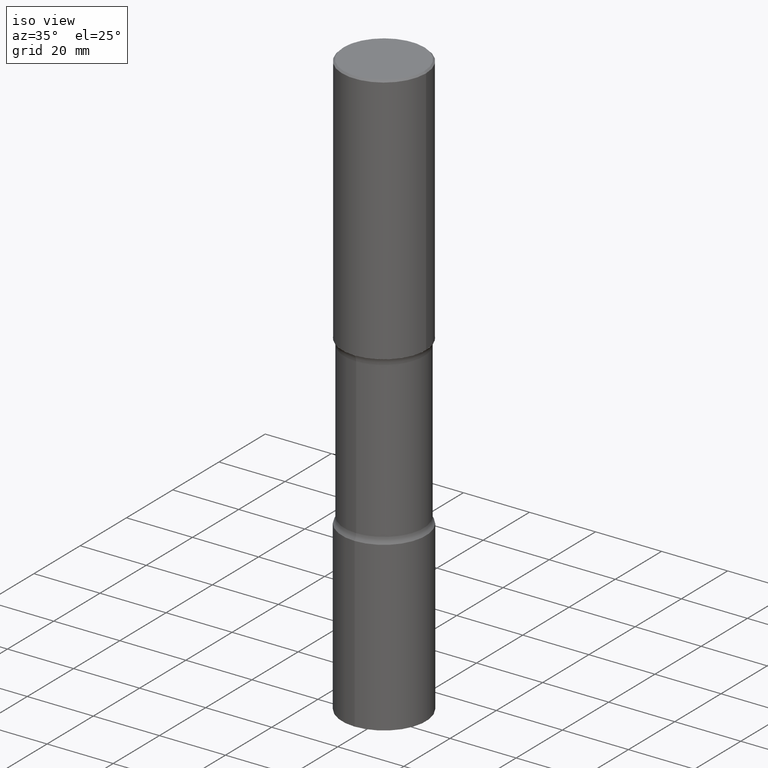
[diagram: clean part render]
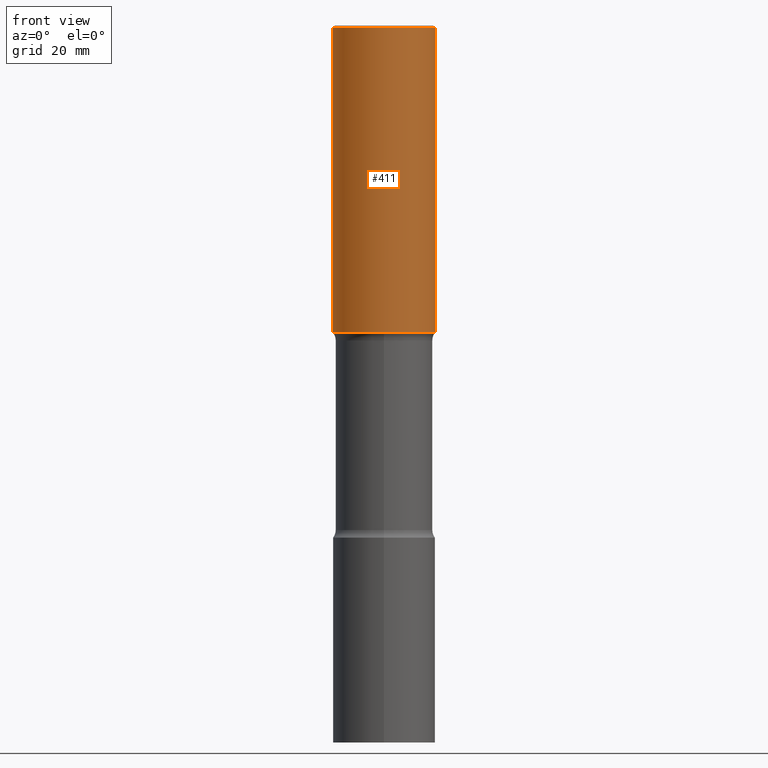
[diagram: tour spotlight — one face highlighted and labeled with its STEP entity id]
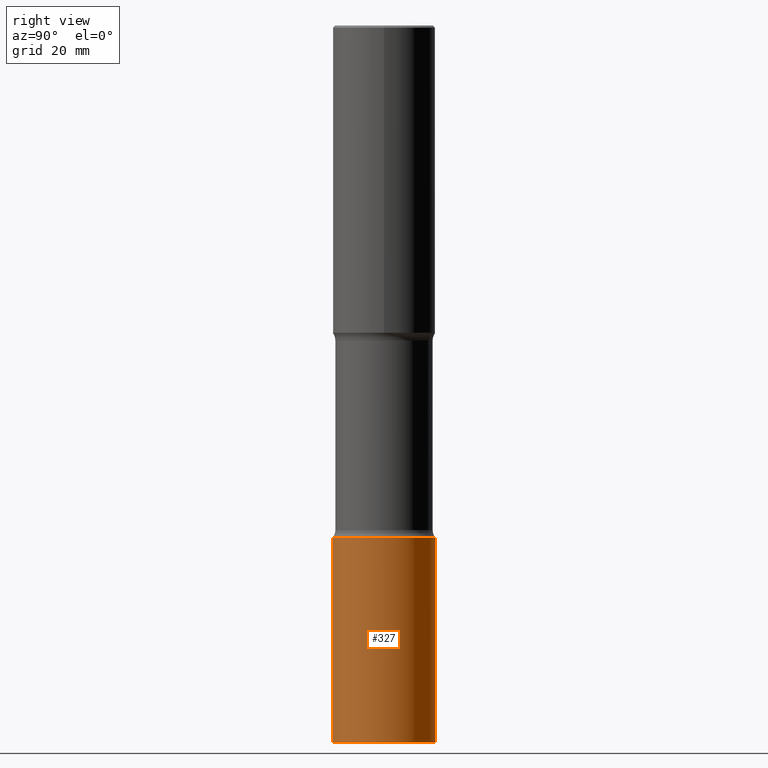
[diagram: tour spotlight — one face highlighted and labeled with its STEP entity id]
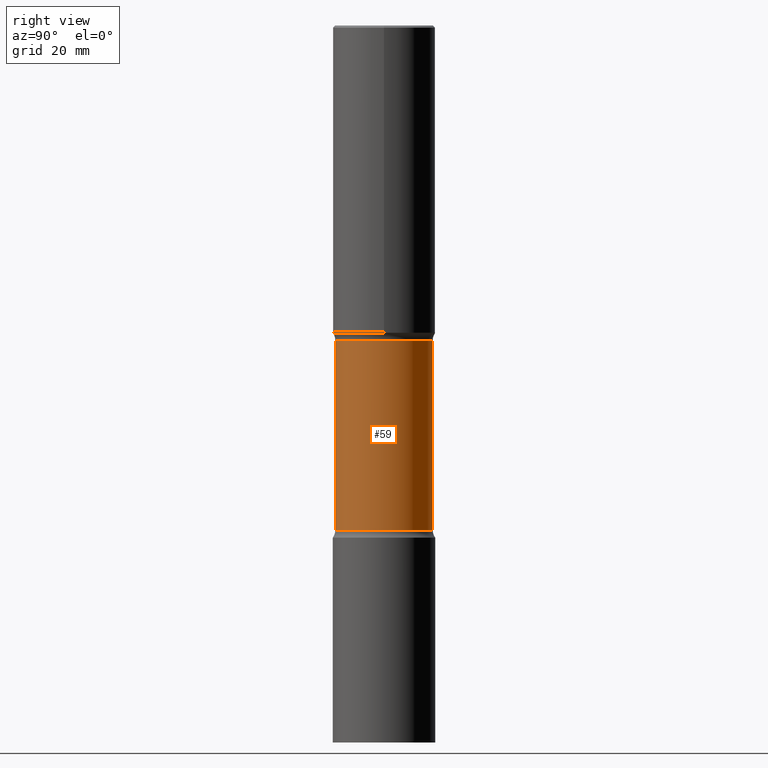
[diagram: tour spotlight — one face highlighted and labeled with its STEP entity id]
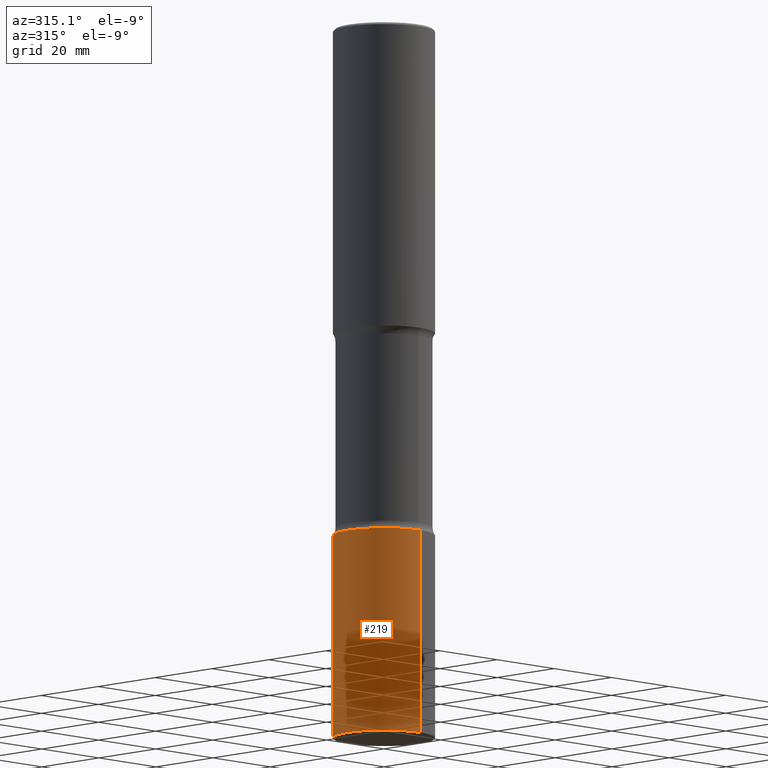
[diagram: tour spotlight — one face highlighted and labeled with its STEP entity id]
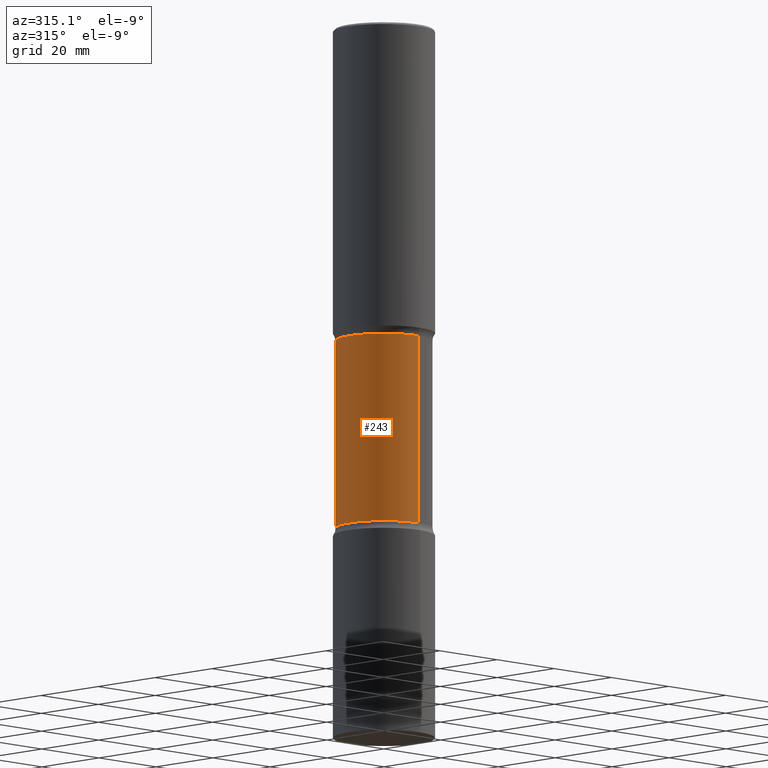
[diagram: tour spotlight — one face highlighted and labeled with its STEP entity id]
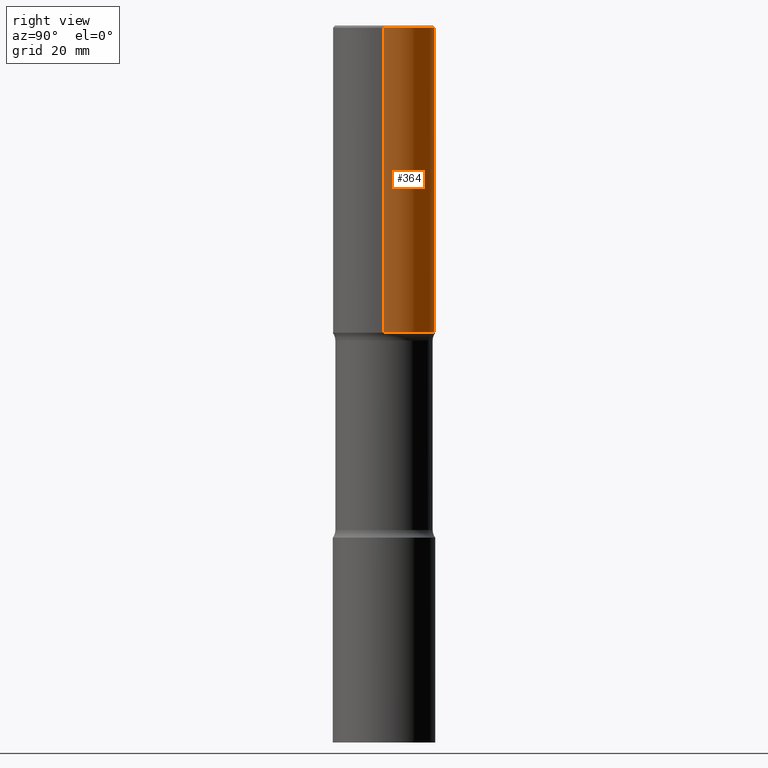
[diagram: tour spotlight — one face highlighted and labeled with its STEP entity id]
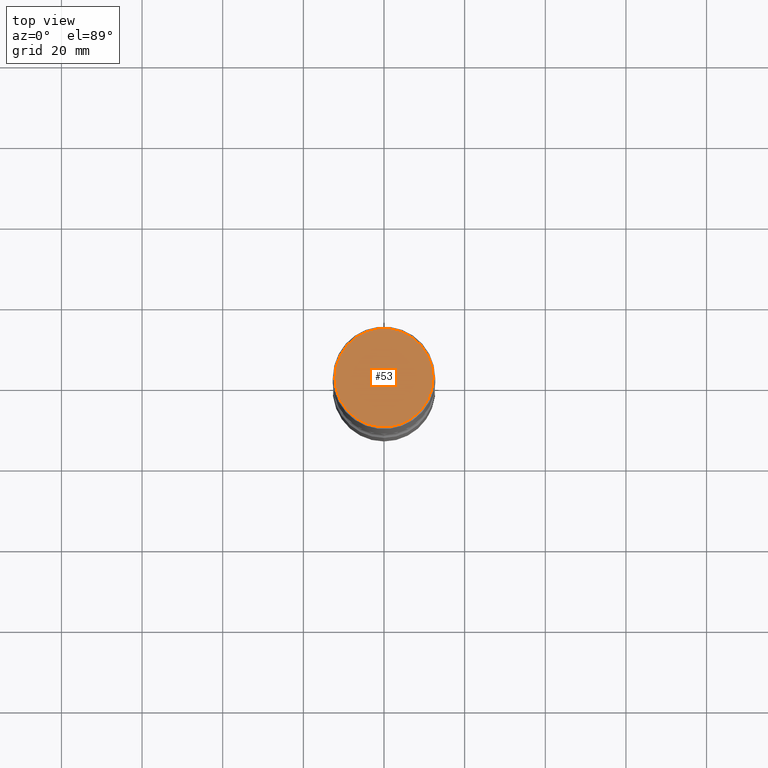
[diagram: tour spotlight — one face highlighted and labeled with its STEP entity id]
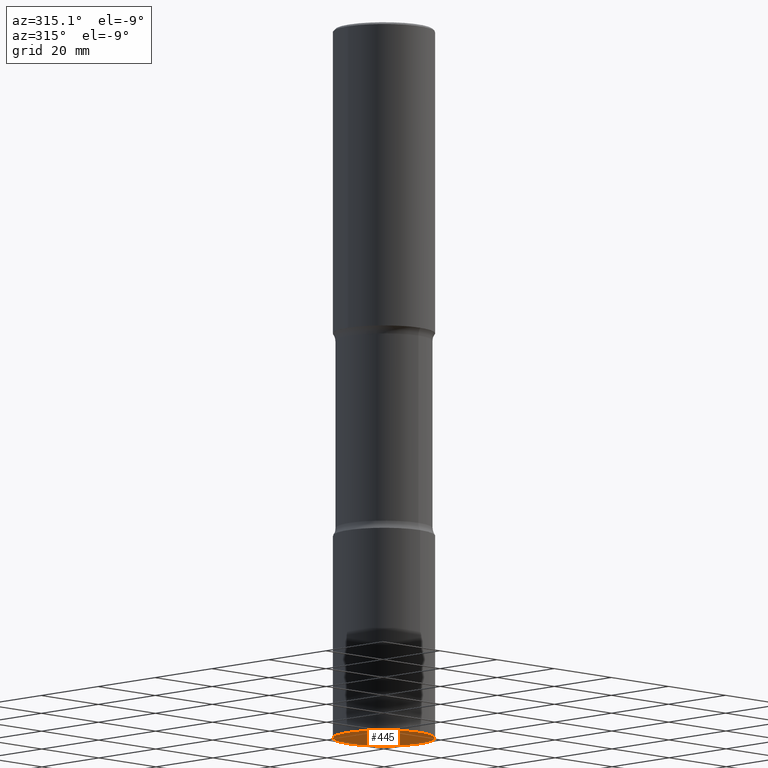
[diagram: tour spotlight — one face highlighted and labeled with its STEP entity id]
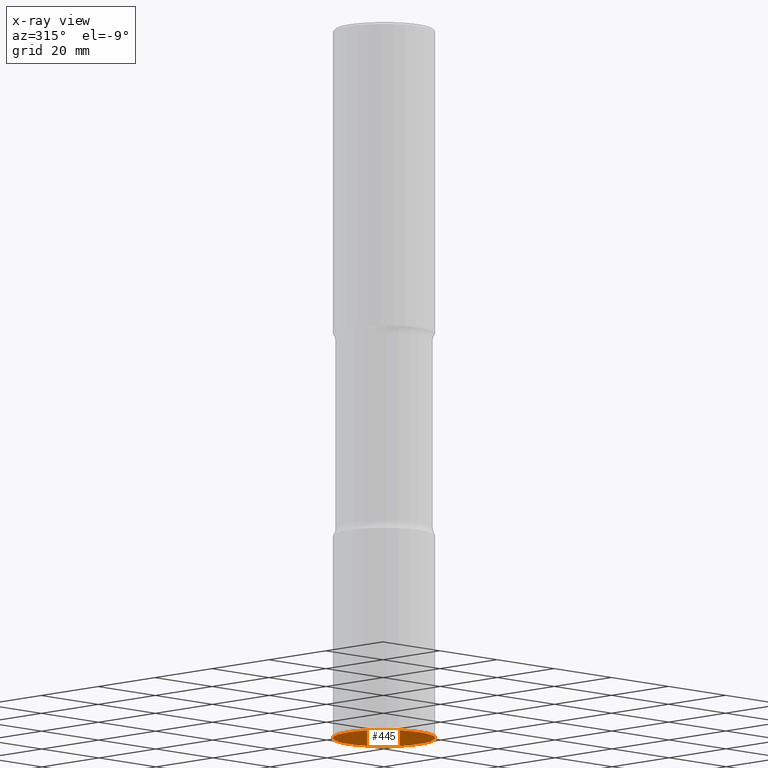
[diagram: x-ray of the same camera — body ghosted, this tour face saturated]
A machine part: a face-by-face anatomy tour. The part has 18 B-rep faces; the first image is the clean iso view, then the 8 largest visible faces are spotlighted one at a time (largest first), each with its STEP entity span.

Face 1 — front view, entity #411. In plain terms, the highlighted cylindrical surface (partial cylindrical patch) has radius 12.7 mm, axis along (-0, 0, 1).
Definition (entity closure, byte-faithful):
#7 = AXIS2_PLACEMENT_3D ( 'NONE', #438, #268, #228 ) ;
#10 = CARTESIAN_POINT ( 'NONE',  ( 0.4999999999999997224, -3.500078625662627502E-15, -0.02000000000000010103 ) ) ;
#20 = EDGE_LOOP ( 'NONE', ( #210, #172, #151, #181 ) ) ;
#110 = CARTESIAN_POINT ( 'NONE',  ( 4.890937612370298557E-31, -6.982962677686327354E-17, -0.02000000000000010103 ) ) ;
#136 = LINE ( 'NONE', #412, #197 ) ;
#140 = CARTESIAN_POINT ( 'NONE',  ( -0.5000000000000000000, -1.719423142852647319E-15, -2.999999999999999556 ) ) ;
#141 = DIRECTION ( 'NONE',  ( -2.445468806185136877E-29, 3.491481338843145188E-15, 1.000000000000000000 ) ) ;
#145 = EDGE_CURVE ( 'NONE', #273, #281, #504, .T. ) ;
#151 = ORIENTED_EDGE ( 'NONE', *, *, #145, .T. ) ;
#165 = EDGE_CURVE ( 'NONE', #451, #281, #277, .T. ) ;
#172 = ORIENTED_EDGE ( 'NONE', *, *, #267, .T. ) ;
#174 = DIRECTION ( 'NONE',  ( -2.445468806185136597E-29, 3.491481338843145583E-15, 1.000000000000000000 ) ) ;
#180 = FACE_OUTER_BOUND ( 'NONE', #20, .T. ) ;
#181 = ORIENTED_EDGE ( 'NONE', *, *, #165, .F. ) ;
#197 = VECTOR ( 'NONE', #378, 39.37007874015748143 ) ;
#210 = ORIENTED_EDGE ( 'NONE', *, *, #392, .F. ) ;
#212 = DIRECTION ( 'NONE',  ( -2.445468806185136597E-29, 3.491481338843145583E-15, 1.000000000000000000 ) ) ;
#228 = DIRECTION ( 'NONE',  ( 1.000000000000000000, -6.982962677686266711E-15, 0.000000000000000000 ) ) ;
#264 = DIRECTION ( 'NONE',  ( 1.000000000000000000, -6.982962677686266711E-15, 0.000000000000000000 ) ) ;
#267 = EDGE_CURVE ( 'NONE', #482, #273, #442, .T. ) ;
#268 = DIRECTION ( 'NONE',  ( -2.445468806185136597E-29, 3.491481338843145583E-15, 1.000000000000000000 ) ) ;
#273 = VERTEX_POINT ( 'NONE', #399 ) ;
#277 = CIRCLE ( 'NONE', #473, 0.4999999999999997224 ) ;
#281 = VERTEX_POINT ( 'NONE', #10 ) ;
#304 = CARTESIAN_POINT ( 'NONE',  ( -0.4999999999999997224, 3.421651712066268085E-15, -0.02000000000000010103 ) ) ;
#326 = CARTESIAN_POINT ( 'NONE',  ( 0.000000000000000000, 0.000000000000000000, 0.000000000000000000 ) ) ;
#366 = AXIS2_PLACEMENT_3D ( 'NONE', #326, #212, #498 ) ;
#378 = DIRECTION ( 'NONE',  ( -2.445468806185136877E-29, 3.491481338843145188E-15, 1.000000000000000000 ) ) ;
#392 = EDGE_CURVE ( 'NONE', #482, #451, #136, .T. ) ;
#399 = CARTESIAN_POINT ( 'NONE',  ( 0.5000000000000000000, -1.396592535537256813E-14, -2.999999999999999556 ) ) ;
#411 = ADVANCED_FACE ( 'NONE', ( #180 ), #419, .T. ) ;
#412 = CARTESIAN_POINT ( 'NONE',  ( -0.4999999999999998335, 3.552713678800499746E-15, -2.459467545127452330E-29 ) ) ;
#419 = CYLINDRICAL_SURFACE ( 'NONE', #366, 0.4999999999999998335 ) ;
#434 = VECTOR ( 'NONE', #141, 39.37007874015748143 ) ;
#438 = CARTESIAN_POINT ( 'NONE',  ( 7.336406418555408669E-29, -1.047444401652943478E-14, -2.999999999999999556 ) ) ;
#442 = CIRCLE ( 'NONE', #7, 0.5000000000000000000 ) ;
#451 = VERTEX_POINT ( 'NONE', #304 ) ;
#473 = AXIS2_PLACEMENT_3D ( 'NONE', #110, #174, #264 ) ;
#482 = VERTEX_POINT ( 'NONE', #140 ) ;
#498 = DIRECTION ( 'NONE',  ( 1.000000000000000000, -6.982962677686267499E-15, 4.876176775795936353E-29 ) ) ;
#500 = CARTESIAN_POINT ( 'NONE',  ( 0.4999999999999998335, -3.491481338843132566E-15, 2.438088387897967336E-29 ) ) ;
#504 = LINE ( 'NONE', #500, #434 ) ;

Face 2 — right view, entity #327. In plain terms, the highlighted cylindrical surface (partial cylindrical patch) has radius 12.7 mm, axis along (-0, 0, 1).
Definition (entity closure, byte-faithful):
#4 = LINE ( 'NONE', #153, #121 ) ;
#18 = EDGE_LOOP ( 'NONE', ( #84, #491, #30, #86 ) ) ;
#25 = CARTESIAN_POINT ( 'NONE',  ( 1.222480514706871301E-28, -1.746104252040319053E-14, -4.999999999999998224 ) ) ;
#29 = DIRECTION ( 'NONE',  ( -2.444961029413743836E-29, 3.492208504080639289E-15, 1.000000000000000000 ) ) ;
#30 = ORIENTED_EDGE ( 'NONE', *, *, #402, .F. ) ;
#37 = CARTESIAN_POINT ( 'NONE',  ( 1.711472720589620405E-28, -2.444545952856446990E-14, -7.000000000000000000 ) ) ;
#62 = DIRECTION ( 'NONE',  ( -6.982962677686265922E-15, -1.000000000000000000, 3.492208504080639684E-15 ) ) ;
#76 = DIRECTION ( 'NONE',  ( -2.444961029413743555E-29, 3.492208504080639289E-15, 1.000000000000000000 ) ) ;
#84 = ORIENTED_EDGE ( 'NONE', *, *, #311, .T. ) ;
#86 = ORIENTED_EDGE ( 'NONE', *, *, #271, .F. ) ;
#97 = CIRCLE ( 'NONE', #206, 0.4999999999999998335 ) ;
#121 = VECTOR ( 'NONE', #313, 39.37007874015748143 ) ;
#130 = CARTESIAN_POINT ( 'NONE',  ( 3.552713678800670534E-15, 0.4999999999999822919, -5.000000000000000000 ) ) ;
#153 = CARTESIAN_POINT ( 'NONE',  ( 3.552713678800499352E-15, 0.4999999999999998335, -1.746104252040319250E-15 ) ) ;
#157 = LINE ( 'NONE', #198, #235 ) ;
#194 = DIRECTION ( 'NONE',  ( -2.444961029413743836E-29, 3.492208504080639289E-15, 1.000000000000000000 ) ) ;
#198 = CARTESIAN_POINT ( 'NONE',  ( -3.491481338843131778E-15, -0.4999999999999998335, 1.746104252040319250E-15 ) ) ;
#206 = AXIS2_PLACEMENT_3D ( 'NONE', #25, #29, #376 ) ;
#209 = CARTESIAN_POINT ( 'NONE',  ( 3.552713678800646080E-15, 0.4999999999999754086, -7.000000000000001776 ) ) ;
#215 = AXIS2_PLACEMENT_3D ( 'NONE', #37, #194, #354 ) ;
#235 = VECTOR ( 'NONE', #76, 39.37007874015748143 ) ;
#251 = FACE_OUTER_BOUND ( 'NONE', #18, .T. ) ;
#271 = EDGE_CURVE ( 'NONE', #285, #287, #157, .T. ) ;
#274 = CARTESIAN_POINT ( 'NONE',  ( -3.491481338843009504E-15, -0.5000000000000173195, -4.999999999999995559 ) ) ;
#285 = VERTEX_POINT ( 'NONE', #436 ) ;
#286 = CYLINDRICAL_SURFACE ( 'NONE', #468, 0.4999999999999998335 ) ;
#287 = VERTEX_POINT ( 'NONE', #274 ) ;
#289 = DIRECTION ( 'NONE',  ( -2.444961029413743836E-29, 3.492208504080639289E-15, 1.000000000000000000 ) ) ;
#311 = EDGE_CURVE ( 'NONE', #285, #362, #479, .T. ) ;
#313 = DIRECTION ( 'NONE',  ( -2.444961029413743555E-29, 3.492208504080639289E-15, 1.000000000000000000 ) ) ;
#319 = EDGE_CURVE ( 'NONE', #362, #325, #4, .T. ) ;
#325 = VERTEX_POINT ( 'NONE', #130 ) ;
#327 = ADVANCED_FACE ( 'NONE', ( #251 ), #286, .T. ) ;
#354 = DIRECTION ( 'NONE',  ( -6.982962677686265922E-15, -1.000000000000000000, 4.370956789862822727E-15 ) ) ;
#362 = VERTEX_POINT ( 'NONE', #209 ) ;
#376 = DIRECTION ( 'NONE',  ( -6.982962677686265922E-15, -1.000000000000000000, 4.370956789862822727E-15 ) ) ;
#402 = EDGE_CURVE ( 'NONE', #287, #325, #97, .T. ) ;
#436 = CARTESIAN_POINT ( 'NONE',  ( -3.491481338842960595E-15, -0.5000000000000243139, -6.999999999999997335 ) ) ;
#455 = CARTESIAN_POINT ( 'NONE',  ( 0.000000000000000000, 0.000000000000000000, 0.000000000000000000 ) ) ;
#468 = AXIS2_PLACEMENT_3D ( 'NONE', #455, #289, #62 ) ;
#479 = CIRCLE ( 'NONE', #215, 0.4999999999999998335 ) ;
#491 = ORIENTED_EDGE ( 'NONE', *, *, #319, .T. ) ;

Face 3 — right view, entity #59. In plain terms, the highlighted cylindrical surface (partial cylindrical patch) has radius 12.065 mm, axis along (0, -0, -1).
Definition (entity closure, byte-faithful):
#1 = ORIENTED_EDGE ( 'NONE', *, *, #302, .T. ) ;
#15 = ORIENTED_EDGE ( 'NONE', *, *, #443, .F. ) ;
#26 = EDGE_LOOP ( 'NONE', ( #1, #446, #15, #72 ) ) ;
#43 = CARTESIAN_POINT ( 'NONE',  ( 3.316907271901098961E-15, 0.4749999999999831024, -4.924999999999999822 ) ) ;
#45 = AXIS2_PLACEMENT_3D ( 'NONE', #223, #190, #427 ) ;
#54 = CARTESIAN_POINT ( 'NONE',  ( 3.316907271901049263E-15, 0.4749999999999889866, -3.075000000000000178 ) ) ;
#59 = ADVANCED_FACE ( 'NONE', ( #99 ), #303, .T. ) ;
#72 = ORIENTED_EDGE ( 'NONE', *, *, #186, .F. ) ;
#80 = DIRECTION ( 'NONE',  ( 6.982962677686265922E-15, 1.000000000000000000, -2.300503573612009450E-15 ) ) ;
#99 = FACE_OUTER_BOUND ( 'NONE', #26, .T. ) ;
#112 = DIRECTION ( 'NONE',  ( 6.982962677686265133E-15, 1.000000000000000000, -3.450755360418017527E-15 ) ) ;
#113 = CARTESIAN_POINT ( 'NONE',  ( 7.417770215337909421E-29, -1.088244131785273239E-14, -3.074999999999998845 ) ) ;
#149 = CARTESIAN_POINT ( 'NONE',  ( -3.258736548941305678E-15, -0.4750000000000244582, -6.999999999999997335 ) ) ;
#155 = AXIS2_PLACEMENT_3D ( 'NONE', #113, #471, #112 ) ;
#156 = CIRCLE ( 'NONE', #278, 0.4750000000000003109 ) ;
#168 = VERTEX_POINT ( 'NONE', #54 ) ;
#173 = CARTESIAN_POINT ( 'NONE',  ( 1.203751807180647490E-28, -1.720473338264148338E-14, -4.924999999999998046 ) ) ;
#186 = EDGE_CURVE ( 'NONE', #168, #323, #377, .T. ) ;
#190 = DIRECTION ( 'NONE',  ( 2.497161003496523093E-29, -3.417455170156083034E-15, -1.000000000000000000 ) ) ;
#192 = CIRCLE ( 'NONE', #155, 0.4749999999999998668 ) ;
#218 = DIRECTION ( 'NONE',  ( 2.497161003496523093E-29, -3.417455170156083034E-15, -1.000000000000000000 ) ) ;
#223 = CARTESIAN_POINT ( 'NONE',  ( 1.721912715406176368E-28, -2.429595286071535581E-14, -6.999999999999998224 ) ) ;
#278 = AXIS2_PLACEMENT_3D ( 'NONE', #173, #218, #80 ) ;
#298 = EDGE_CURVE ( 'NONE', #433, #447, #508, .T. ) ;
#302 = EDGE_CURVE ( 'NONE', #168, #433, #192, .T. ) ;
#303 = CYLINDRICAL_SURFACE ( 'NONE', #45, 0.4750000000000001443 ) ;
#309 = CARTESIAN_POINT ( 'NONE',  ( -3.344492773913501414E-15, -0.4750000000000176303, -4.924999999999997158 ) ) ;
#310 = DIRECTION ( 'NONE',  ( 2.497161003496522813E-29, -3.417455170156083034E-15, -1.000000000000000000 ) ) ;
#323 = VERTEX_POINT ( 'NONE', #43 ) ;
#330 = CARTESIAN_POINT ( 'NONE',  ( -3.344492773913547957E-15, -0.4750000000000106914, -3.074999999999997069 ) ) ;
#361 = CARTESIAN_POINT ( 'NONE',  ( 3.316907271901149448E-15, 0.4749999999999758304, -7.000000000000000000 ) ) ;
#377 = LINE ( 'NONE', #361, #400 ) ;
#398 = DIRECTION ( 'NONE',  ( 2.497161003496522813E-29, -3.417455170156083034E-15, -1.000000000000000000 ) ) ;
#400 = VECTOR ( 'NONE', #398, 39.37007874015748143 ) ;
#415 = VECTOR ( 'NONE', #310, 39.37007874015748143 ) ;
#427 = DIRECTION ( 'NONE',  ( 6.982962677686265133E-15, 1.000000000000000000, -2.300503573612010239E-15 ) ) ;
#433 = VERTEX_POINT ( 'NONE', #330 ) ;
#443 = EDGE_CURVE ( 'NONE', #323, #447, #156, .T. ) ;
#446 = ORIENTED_EDGE ( 'NONE', *, *, #298, .T. ) ;
#447 = VERTEX_POINT ( 'NONE', #309 ) ;
#471 = DIRECTION ( 'NONE',  ( 2.497161003496523093E-29, -3.417455170156083034E-15, -1.000000000000000000 ) ) ;
#508 = LINE ( 'NONE', #149, #415 ) ;

Face 4 — auxiliary view, entity #219. In plain terms, the highlighted cylindrical surface (partial cylindrical patch) has radius 12.7 mm, axis along (-0, 0, 1).
Definition (entity closure, byte-faithful):
#2 = ORIENTED_EDGE ( 'NONE', *, *, #271, .T. ) ;
#4 = LINE ( 'NONE', #153, #121 ) ;
#44 = ORIENTED_EDGE ( 'NONE', *, *, #159, .T. ) ;
#69 = CARTESIAN_POINT ( 'NONE',  ( 1.222480514706871301E-28, -1.746104252040319053E-14, -4.999999999999998224 ) ) ;
#71 = CARTESIAN_POINT ( 'NONE',  ( 0.000000000000000000, 0.000000000000000000, 0.000000000000000000 ) ) ;
#76 = DIRECTION ( 'NONE',  ( -2.444961029413743555E-29, 3.492208504080639289E-15, 1.000000000000000000 ) ) ;
#79 = AXIS2_PLACEMENT_3D ( 'NONE', #260, #299, #221 ) ;
#117 = DIRECTION ( 'NONE',  ( -6.982962677686265922E-15, -1.000000000000000000, 3.492208504080639684E-15 ) ) ;
#118 = CYLINDRICAL_SURFACE ( 'NONE', #294, 0.4999999999999998335 ) ;
#120 = AXIS2_PLACEMENT_3D ( 'NONE', #69, #393, #191 ) ;
#121 = VECTOR ( 'NONE', #313, 39.37007874015748143 ) ;
#130 = CARTESIAN_POINT ( 'NONE',  ( 3.552713678800670534E-15, 0.4999999999999822919, -5.000000000000000000 ) ) ;
#137 = ORIENTED_EDGE ( 'NONE', *, *, #319, .F. ) ;
#153 = CARTESIAN_POINT ( 'NONE',  ( 3.552713678800499352E-15, 0.4999999999999998335, -1.746104252040319250E-15 ) ) ;
#157 = LINE ( 'NONE', #198, #235 ) ;
#159 = EDGE_CURVE ( 'NONE', #362, #285, #213, .T. ) ;
#191 = DIRECTION ( 'NONE',  ( -6.982962677686265922E-15, -1.000000000000000000, 4.370956789862822727E-15 ) ) ;
#198 = CARTESIAN_POINT ( 'NONE',  ( -3.491481338843131778E-15, -0.4999999999999998335, 1.746104252040319250E-15 ) ) ;
#209 = CARTESIAN_POINT ( 'NONE',  ( 3.552713678800646080E-15, 0.4999999999999754086, -7.000000000000001776 ) ) ;
#213 = CIRCLE ( 'NONE', #79, 0.4999999999999998335 ) ;
#219 = ADVANCED_FACE ( 'NONE', ( #395 ), #118, .T. ) ;
#221 = DIRECTION ( 'NONE',  ( -6.982962677686265922E-15, -1.000000000000000000, 4.370956789862822727E-15 ) ) ;
#235 = VECTOR ( 'NONE', #76, 39.37007874015748143 ) ;
#260 = CARTESIAN_POINT ( 'NONE',  ( 1.711472720589620405E-28, -2.444545952856446990E-14, -7.000000000000000000 ) ) ;
#271 = EDGE_CURVE ( 'NONE', #285, #287, #157, .T. ) ;
#274 = CARTESIAN_POINT ( 'NONE',  ( -3.491481338843009504E-15, -0.5000000000000173195, -4.999999999999995559 ) ) ;
#279 = EDGE_LOOP ( 'NONE', ( #137, #44, #2, #423 ) ) ;
#285 = VERTEX_POINT ( 'NONE', #436 ) ;
#287 = VERTEX_POINT ( 'NONE', #274 ) ;
#293 = EDGE_CURVE ( 'NONE', #325, #287, #394, .T. ) ;
#294 = AXIS2_PLACEMENT_3D ( 'NONE', #71, #474, #117 ) ;
#299 = DIRECTION ( 'NONE',  ( -2.444961029413743836E-29, 3.492208504080639289E-15, 1.000000000000000000 ) ) ;
#313 = DIRECTION ( 'NONE',  ( -2.444961029413743555E-29, 3.492208504080639289E-15, 1.000000000000000000 ) ) ;
#319 = EDGE_CURVE ( 'NONE', #362, #325, #4, .T. ) ;
#325 = VERTEX_POINT ( 'NONE', #130 ) ;
#362 = VERTEX_POINT ( 'NONE', #209 ) ;
#393 = DIRECTION ( 'NONE',  ( -2.444961029413743836E-29, 3.492208504080639289E-15, 1.000000000000000000 ) ) ;
#394 = CIRCLE ( 'NONE', #120, 0.4999999999999998335 ) ;
#395 = FACE_OUTER_BOUND ( 'NONE', #279, .T. ) ;
#423 = ORIENTED_EDGE ( 'NONE', *, *, #293, .F. ) ;
#436 = CARTESIAN_POINT ( 'NONE',  ( -3.491481338842960595E-15, -0.5000000000000243139, -6.999999999999997335 ) ) ;
#474 = DIRECTION ( 'NONE',  ( -2.444961029413743836E-29, 3.492208504080639289E-15, 1.000000000000000000 ) ) ;

Face 5 — auxiliary view, entity #243. In plain terms, the highlighted cylindrical surface (partial cylindrical patch) has radius 12.065 mm, axis along (0, -0, -1).
Definition (entity closure, byte-faithful):
#16 = ORIENTED_EDGE ( 'NONE', *, *, #186, .T. ) ;
#33 = ORIENTED_EDGE ( 'NONE', *, *, #60, .T. ) ;
#43 = CARTESIAN_POINT ( 'NONE',  ( 3.316907271901098961E-15, 0.4749999999999831024, -4.924999999999999822 ) ) ;
#54 = CARTESIAN_POINT ( 'NONE',  ( 3.316907271901049263E-15, 0.4749999999999889866, -3.075000000000000178 ) ) ;
#60 = EDGE_CURVE ( 'NONE', #433, #168, #126, .T. ) ;
#78 = AXIS2_PLACEMENT_3D ( 'NONE', #418, #465, #335 ) ;
#82 = ORIENTED_EDGE ( 'NONE', *, *, #298, .F. ) ;
#126 = CIRCLE ( 'NONE', #78, 0.4749999999999998668 ) ;
#149 = CARTESIAN_POINT ( 'NONE',  ( -3.258736548941305678E-15, -0.4750000000000244582, -6.999999999999997335 ) ) ;
#154 = CYLINDRICAL_SURFACE ( 'NONE', #488, 0.4750000000000001443 ) ;
#168 = VERTEX_POINT ( 'NONE', #54 ) ;
#186 = EDGE_CURVE ( 'NONE', #168, #323, #377, .T. ) ;
#222 = CARTESIAN_POINT ( 'NONE',  ( 1.203751807180647490E-28, -1.720473338264148338E-14, -4.924999999999998046 ) ) ;
#230 = FACE_OUTER_BOUND ( 'NONE', #238, .T. ) ;
#232 = DIRECTION ( 'NONE',  ( 6.982962677686265133E-15, 1.000000000000000000, -2.300503573612010239E-15 ) ) ;
#234 = DIRECTION ( 'NONE',  ( 2.497161003496523093E-29, -3.417455170156083034E-15, -1.000000000000000000 ) ) ;
#238 = EDGE_LOOP ( 'NONE', ( #82, #33, #16, #493 ) ) ;
#243 = ADVANCED_FACE ( 'NONE', ( #230 ), #154, .T. ) ;
#261 = CIRCLE ( 'NONE', #359, 0.4750000000000003109 ) ;
#292 = DIRECTION ( 'NONE',  ( 2.497161003496523093E-29, -3.417455170156083034E-15, -1.000000000000000000 ) ) ;
#298 = EDGE_CURVE ( 'NONE', #433, #447, #508, .T. ) ;
#309 = CARTESIAN_POINT ( 'NONE',  ( -3.344492773913501414E-15, -0.4750000000000176303, -4.924999999999997158 ) ) ;
#310 = DIRECTION ( 'NONE',  ( 2.497161003496522813E-29, -3.417455170156083034E-15, -1.000000000000000000 ) ) ;
#315 = CARTESIAN_POINT ( 'NONE',  ( 1.721912715406176368E-28, -2.429595286071535581E-14, -6.999999999999998224 ) ) ;
#323 = VERTEX_POINT ( 'NONE', #43 ) ;
#330 = CARTESIAN_POINT ( 'NONE',  ( -3.344492773913547957E-15, -0.4750000000000106914, -3.074999999999997069 ) ) ;
#335 = DIRECTION ( 'NONE',  ( 6.982962677686265133E-15, 1.000000000000000000, -3.450755360418017527E-15 ) ) ;
#338 = EDGE_CURVE ( 'NONE', #447, #323, #261, .T. ) ;
#359 = AXIS2_PLACEMENT_3D ( 'NONE', #222, #292, #409 ) ;
#361 = CARTESIAN_POINT ( 'NONE',  ( 3.316907271901149448E-15, 0.4749999999999758304, -7.000000000000000000 ) ) ;
#377 = LINE ( 'NONE', #361, #400 ) ;
#398 = DIRECTION ( 'NONE',  ( 2.497161003496522813E-29, -3.417455170156083034E-15, -1.000000000000000000 ) ) ;
#400 = VECTOR ( 'NONE', #398, 39.37007874015748143 ) ;
#409 = DIRECTION ( 'NONE',  ( 6.982962677686265922E-15, 1.000000000000000000, -2.300503573612009450E-15 ) ) ;
#415 = VECTOR ( 'NONE', #310, 39.37007874015748143 ) ;
#418 = CARTESIAN_POINT ( 'NONE',  ( 7.417770215337909421E-29, -1.088244131785273239E-14, -3.074999999999998845 ) ) ;
#433 = VERTEX_POINT ( 'NONE', #330 ) ;
#447 = VERTEX_POINT ( 'NONE', #309 ) ;
#465 = DIRECTION ( 'NONE',  ( 2.497161003496523093E-29, -3.417455170156083034E-15, -1.000000000000000000 ) ) ;
#488 = AXIS2_PLACEMENT_3D ( 'NONE', #315, #234, #232 ) ;
#493 = ORIENTED_EDGE ( 'NONE', *, *, #338, .F. ) ;
#508 = LINE ( 'NONE', #149, #415 ) ;

Face 6 — right view, entity #364. In plain terms, the highlighted cylindrical surface (partial cylindrical patch) has radius 12.7 mm, axis along (-0, 0, 1).
Definition (entity closure, byte-faithful):
#10 = CARTESIAN_POINT ( 'NONE',  ( 0.4999999999999997224, -3.500078625662627502E-15, -0.02000000000000010103 ) ) ;
#32 = DIRECTION ( 'NONE',  ( 1.000000000000000000, -6.982962677686266711E-15, 0.000000000000000000 ) ) ;
#50 = ORIENTED_EDGE ( 'NONE', *, *, #324, .T. ) ;
#52 = DIRECTION ( 'NONE',  ( 1.000000000000000000, -6.982962677686267499E-15, 4.876176775795936353E-29 ) ) ;
#102 = EDGE_CURVE ( 'NONE', #281, #451, #252, .T. ) ;
#107 = AXIS2_PLACEMENT_3D ( 'NONE', #384, #345, #32 ) ;
#123 = EDGE_LOOP ( 'NONE', ( #50, #258, #332, #405 ) ) ;
#136 = LINE ( 'NONE', #412, #197 ) ;
#139 = AXIS2_PLACEMENT_3D ( 'NONE', #237, #450, #489 ) ;
#140 = CARTESIAN_POINT ( 'NONE',  ( -0.5000000000000000000, -1.719423142852647319E-15, -2.999999999999999556 ) ) ;
#141 = DIRECTION ( 'NONE',  ( -2.445468806185136877E-29, 3.491481338843145188E-15, 1.000000000000000000 ) ) ;
#145 = EDGE_CURVE ( 'NONE', #273, #281, #504, .T. ) ;
#163 = CIRCLE ( 'NONE', #139, 0.5000000000000000000 ) ;
#197 = VECTOR ( 'NONE', #378, 39.37007874015748143 ) ;
#237 = CARTESIAN_POINT ( 'NONE',  ( 7.336406418555408669E-29, -1.047444401652943478E-14, -2.999999999999999556 ) ) ;
#249 = FACE_OUTER_BOUND ( 'NONE', #123, .T. ) ;
#252 = CIRCLE ( 'NONE', #107, 0.4999999999999997224 ) ;
#258 = ORIENTED_EDGE ( 'NONE', *, *, #392, .T. ) ;
#273 = VERTEX_POINT ( 'NONE', #399 ) ;
#281 = VERTEX_POINT ( 'NONE', #10 ) ;
#304 = CARTESIAN_POINT ( 'NONE',  ( -0.4999999999999997224, 3.421651712066268085E-15, -0.02000000000000010103 ) ) ;
#324 = EDGE_CURVE ( 'NONE', #273, #482, #163, .T. ) ;
#332 = ORIENTED_EDGE ( 'NONE', *, *, #102, .F. ) ;
#345 = DIRECTION ( 'NONE',  ( -2.445468806185136597E-29, 3.491481338843145583E-15, 1.000000000000000000 ) ) ;
#364 = ADVANCED_FACE ( 'NONE', ( #249 ), #368, .T. ) ;
#368 = CYLINDRICAL_SURFACE ( 'NONE', #475, 0.4999999999999998335 ) ;
#378 = DIRECTION ( 'NONE',  ( -2.445468806185136877E-29, 3.491481338843145188E-15, 1.000000000000000000 ) ) ;
#384 = CARTESIAN_POINT ( 'NONE',  ( 4.890937612370298557E-31, -6.982962677686327354E-17, -0.02000000000000010103 ) ) ;
#392 = EDGE_CURVE ( 'NONE', #482, #451, #136, .T. ) ;
#399 = CARTESIAN_POINT ( 'NONE',  ( 0.5000000000000000000, -1.396592535537256813E-14, -2.999999999999999556 ) ) ;
#401 = DIRECTION ( 'NONE',  ( -2.445468806185136597E-29, 3.491481338843145583E-15, 1.000000000000000000 ) ) ;
#405 = ORIENTED_EDGE ( 'NONE', *, *, #145, .F. ) ;
#412 = CARTESIAN_POINT ( 'NONE',  ( -0.4999999999999998335, 3.552713678800499746E-15, -2.459467545127452330E-29 ) ) ;
#434 = VECTOR ( 'NONE', #141, 39.37007874015748143 ) ;
#450 = DIRECTION ( 'NONE',  ( -2.445468806185136597E-29, 3.491481338843145583E-15, 1.000000000000000000 ) ) ;
#451 = VERTEX_POINT ( 'NONE', #304 ) ;
#459 = CARTESIAN_POINT ( 'NONE',  ( 0.000000000000000000, 0.000000000000000000, 0.000000000000000000 ) ) ;
#475 = AXIS2_PLACEMENT_3D ( 'NONE', #459, #401, #52 ) ;
#482 = VERTEX_POINT ( 'NONE', #140 ) ;
#489 = DIRECTION ( 'NONE',  ( 1.000000000000000000, -6.982962677686266711E-15, 0.000000000000000000 ) ) ;
#500 = CARTESIAN_POINT ( 'NONE',  ( 0.4999999999999998335, -3.491481338843132566E-15, 2.438088387897967336E-29 ) ) ;
#504 = LINE ( 'NONE', #500, #434 ) ;

Face 7 — top view, entity #53. In plain terms, the highlighted planar face has unit normal (0, -0, -1).
Definition (entity closure, byte-faithful):
#23 = CARTESIAN_POINT ( 'NONE',  ( 3.351822085289404787E-15, 0.4799999999999995937, -1.669508273909557867E-15 ) ) ;
#47 = ORIENTED_EDGE ( 'NONE', *, *, #499, .T. ) ;
#53 = ADVANCED_FACE ( 'NONE', ( #388 ), #142, .F. ) ;
#57 = AXIS2_PLACEMENT_3D ( 'NONE', #297, #189, #143 ) ;
#63 = DIRECTION ( 'NONE',  ( 2.438088387897960049E-29, -3.491481338843145188E-15, -1.000000000000000000 ) ) ;
#96 = AXIS2_PLACEMENT_3D ( 'NONE', #23, #63, #461 ) ;
#108 = DIRECTION ( 'NONE',  ( 1.000000000000000000, -6.982962677686266711E-15, 4.876036955247133327E-29 ) ) ;
#115 = CIRCLE ( 'NONE', #57, 0.4799999999999995937 ) ;
#119 = EDGE_LOOP ( 'NONE', ( #250, #47 ) ) ;
#128 = VERTEX_POINT ( 'NONE', #188 ) ;
#142 = PLANE ( 'NONE',  #96 ) ;
#143 = DIRECTION ( 'NONE',  ( 1.000000000000000000, -6.982962677686266711E-15, 4.876036955247133327E-29 ) ) ;
#188 = CARTESIAN_POINT ( 'NONE',  ( -0.4799999999999995937, 3.386736898677836436E-15, 1.280553747027767124E-17 ) ) ;
#189 = DIRECTION ( 'NONE',  ( -2.445468806185136597E-29, 3.491481338843145583E-15, 1.000000000000000000 ) ) ;
#224 = VERTEX_POINT ( 'NONE', #318 ) ;
#229 = CARTESIAN_POINT ( 'NONE',  ( -3.131554243005659264E-46, 4.471029511141341874E-32, 1.280553747030123384E-17 ) ) ;
#242 = AXIS2_PLACEMENT_3D ( 'NONE', #229, #422, #108 ) ;
#250 = ORIENTED_EDGE ( 'NONE', *, *, #485, .T. ) ;
#297 = CARTESIAN_POINT ( 'NONE',  ( -3.131554243005659264E-46, 4.471029511141341874E-32, 1.280553747030123384E-17 ) ) ;
#318 = CARTESIAN_POINT ( 'NONE',  ( 0.4799999999999995937, -3.396558832296480127E-15, 1.280553747032483033E-17 ) ) ;
#388 = FACE_OUTER_BOUND ( 'NONE', #119, .T. ) ;
#416 = CIRCLE ( 'NONE', #242, 0.4799999999999995937 ) ;
#422 = DIRECTION ( 'NONE',  ( -2.445468806185136597E-29, 3.491481338843145583E-15, 1.000000000000000000 ) ) ;
#461 = DIRECTION ( 'NONE',  ( -1.000000000000000000, 6.982962677686265922E-15, -4.876176775795935793E-29 ) ) ;
#485 = EDGE_CURVE ( 'NONE', #128, #224, #115, .T. ) ;
#499 = EDGE_CURVE ( 'NONE', #224, #128, #416, .T. ) ;

Face 8 — auxiliary view, entity #445. An x-ray twin of the same camera follows (body ghosted, this face saturated) — the face is partly hidden behind the body. In plain terms, the highlighted planar face has unit normal (0, -0, -1).
Definition (entity closure, byte-faithful):
#37 = CARTESIAN_POINT ( 'NONE',  ( 1.711472720589620405E-28, -2.444545952856446990E-14, -7.000000000000000000 ) ) ;
#74 = AXIS2_PLACEMENT_3D ( 'NONE', #134, #284, #371 ) ;
#79 = AXIS2_PLACEMENT_3D ( 'NONE', #260, #299, #221 ) ;
#134 = CARTESIAN_POINT ( 'NONE',  ( 6.435501798008941756E-29, -3.973871813642189428E-14, -6.999999999999998224 ) ) ;
#159 = EDGE_CURVE ( 'NONE', #362, #285, #213, .T. ) ;
#194 = DIRECTION ( 'NONE',  ( -2.444961029413743836E-29, 3.492208504080639289E-15, 1.000000000000000000 ) ) ;
#208 = EDGE_LOOP ( 'NONE', ( #413, #369 ) ) ;
#209 = CARTESIAN_POINT ( 'NONE',  ( 3.552713678800646080E-15, 0.4999999999999754086, -7.000000000000001776 ) ) ;
#213 = CIRCLE ( 'NONE', #79, 0.4999999999999998335 ) ;
#215 = AXIS2_PLACEMENT_3D ( 'NONE', #37, #194, #354 ) ;
#221 = DIRECTION ( 'NONE',  ( -6.982962677686265922E-15, -1.000000000000000000, 4.370956789862822727E-15 ) ) ;
#260 = CARTESIAN_POINT ( 'NONE',  ( 1.711472720589620405E-28, -2.444545952856446990E-14, -7.000000000000000000 ) ) ;
#284 = DIRECTION ( 'NONE',  ( 2.444961029413743275E-29, -3.492208504080639289E-15, -1.000000000000000000 ) ) ;
#285 = VERTEX_POINT ( 'NONE', #436 ) ;
#299 = DIRECTION ( 'NONE',  ( -2.444961029413743836E-29, 3.492208504080639289E-15, 1.000000000000000000 ) ) ;
#311 = EDGE_CURVE ( 'NONE', #285, #362, #479, .T. ) ;
#334 = FACE_OUTER_BOUND ( 'NONE', #208, .T. ) ;
#354 = DIRECTION ( 'NONE',  ( -6.982962677686265922E-15, -1.000000000000000000, 4.370956789862822727E-15 ) ) ;
#362 = VERTEX_POINT ( 'NONE', #209 ) ;
#369 = ORIENTED_EDGE ( 'NONE', *, *, #159, .F. ) ;
#371 = DIRECTION ( 'NONE',  ( 6.982962677686265922E-15, 1.000000000000000000, -3.492208504080639289E-15 ) ) ;
#413 = ORIENTED_EDGE ( 'NONE', *, *, #311, .F. ) ;
#436 = CARTESIAN_POINT ( 'NONE',  ( -3.491481338842960595E-15, -0.5000000000000243139, -6.999999999999997335 ) ) ;
#445 = ADVANCED_FACE ( 'NONE', ( #334 ), #484, .T. ) ;
#479 = CIRCLE ( 'NONE', #215, 0.4999999999999998335 ) ;
#484 = PLANE ( 'NONE',  #74 ) ;